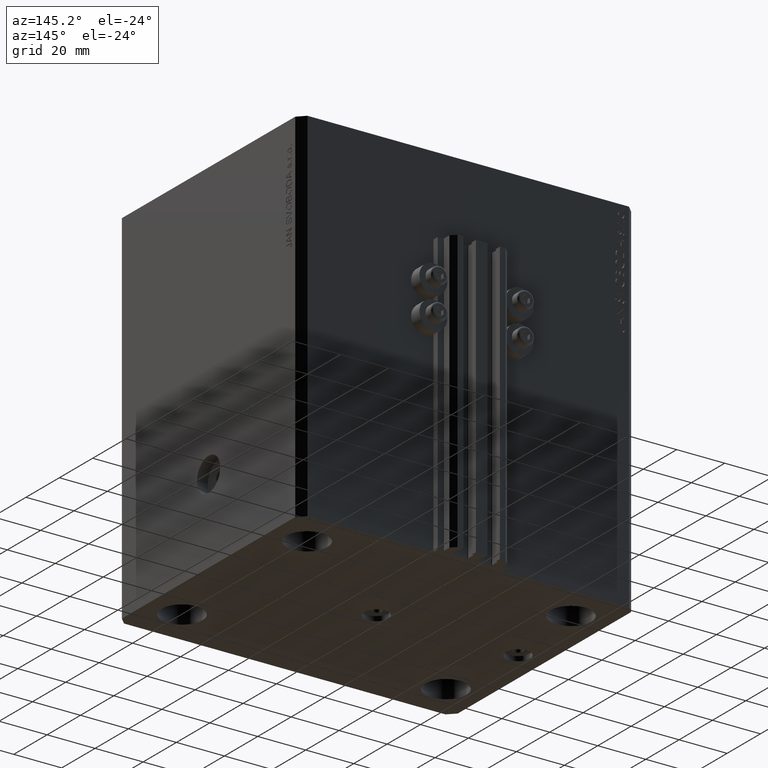
[diagram: clean part render]
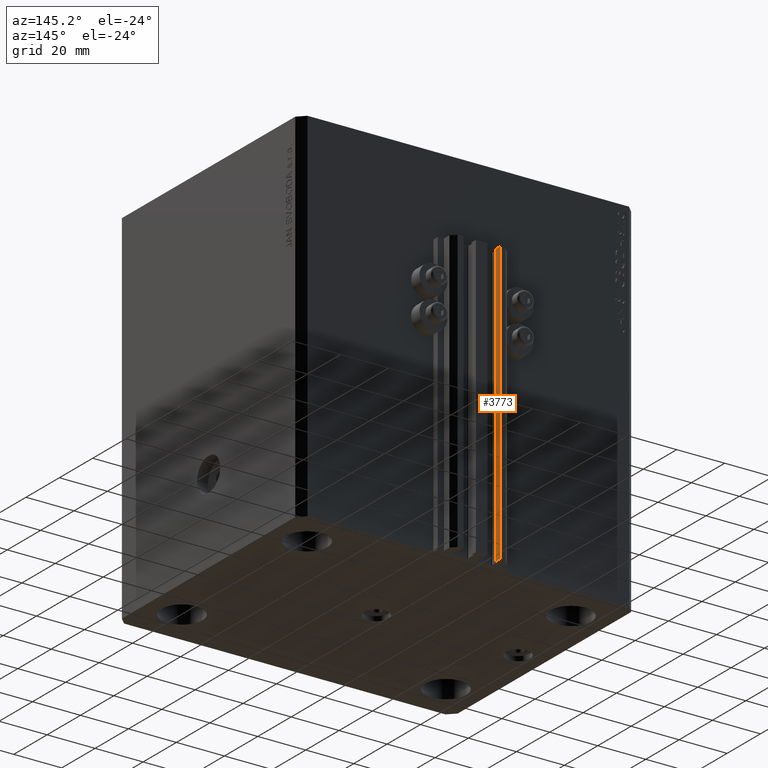
[diagram: same view with one face highlighted and labeled with its STEP entity id]
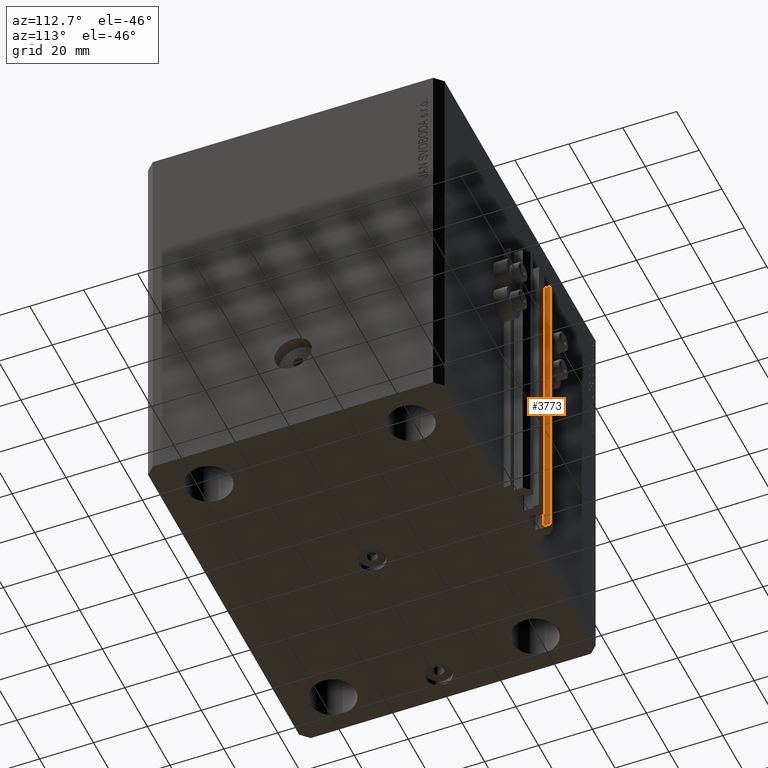
[diagram: same view with one face highlighted and labeled with its STEP entity id]
A machine part, auxiliary view. The second image highlights one B-rep face of the part: STEP entity #3773.
A second angle (auxiliary view) of the same face is appended — the face is thin or edge-on in the first view.
In plain terms, the highlighted planar face has unit normal (1, -0, 0).
Its self-contained STEP definition (entity closure, byte-faithful):
#3773 = ADVANCED_FACE ( 'NONE', ( #34742 ), #30919, .T. ) ;
#3820 = VERTEX_POINT ( 'NONE', #16788 ) ;
#4553 = VECTOR ( 'NONE', #31254, 1000.000000000000000 ) ;
#6729 = AXIS2_PLACEMENT_3D ( 'NONE', #30685, #31154, #35215 ) ;
#7490 = EDGE_CURVE ( 'NONE', #29170, #40756, #45861, .T. ) ;
#8925 = VERTEX_POINT ( 'NONE', #36442 ) ;
#9078 = ORIENTED_EDGE ( 'NONE', *, *, #7490, .T. ) ;
#10102 = EDGE_LOOP ( 'NONE', ( #37171, #11234, #23352, #9078 ) ) ;
#10128 = DIRECTION ( 'NONE',  ( 2.891205793294671522E-15, 1.000000000000000000, 0.000000000000000000 ) ) ;
#11234 = ORIENTED_EDGE ( 'NONE', *, *, #19901, .F. ) ;
#16648 = CARTESIAN_POINT ( 'NONE',  ( -7.650000000000002132, 63.00000000000000000, -150.0000000000000000 ) ) ;
#16788 = CARTESIAN_POINT ( 'NONE',  ( -7.650000000000009237, 60.59999999999999432, -150.0000000000000000 ) ) ;
#19901 = EDGE_CURVE ( 'NONE', #3820, #8925, #46335, .T. ) ;
#21605 = LINE ( 'NONE', #35279, #44193 ) ;
#22672 = CARTESIAN_POINT ( 'NONE',  ( -7.650000000000009237, 60.59999999999999432, -33.00000000000000000 ) ) ;
#23352 = ORIENTED_EDGE ( 'NONE', *, *, #44267, .T. ) ;
#25776 = LINE ( 'NONE', #22672, #28129 ) ;
#28129 = VECTOR ( 'NONE', #37510, 1000.000000000000000 ) ;
#29170 = VERTEX_POINT ( 'NONE', #29782 ) ;
#29782 = CARTESIAN_POINT ( 'NONE',  ( -7.650000000000002132, 63.00000000000000000, -150.0000000000000000 ) ) ;
#30685 = CARTESIAN_POINT ( 'NONE',  ( -7.650000000000009237, 60.59999999999999432, -150.0000000000000000 ) ) ;
#30919 = PLANE ( 'NONE',  #6729 ) ;
#31154 = DIRECTION ( 'NONE',  ( 1.000000000000000000, -2.891205793294671128E-15, 0.000000000000000000 ) ) ;
#31254 = DIRECTION ( 'NONE',  ( 0.000000000000000000, 0.000000000000000000, 1.000000000000000000 ) ) ;
#31259 = CARTESIAN_POINT ( 'NONE',  ( -7.650000000000009237, 60.59999999999999432, -150.0000000000000000 ) ) ;
#33660 = CARTESIAN_POINT ( 'NONE',  ( -7.650000000000002132, 63.00000000000000000, -33.00000000000000000 ) ) ;
#33999 = EDGE_CURVE ( 'NONE', #8925, #40756, #25776, .T. ) ;
#34742 = FACE_OUTER_BOUND ( 'NONE', #10102, .T. ) ;
#35215 = DIRECTION ( 'NONE',  ( 2.891205793294671128E-15, 1.000000000000000000, 0.000000000000000000 ) ) ;
#35279 = CARTESIAN_POINT ( 'NONE',  ( -7.650000000000009237, 60.59999999999999432, -150.0000000000000000 ) ) ;
#35319 = DIRECTION ( 'NONE',  ( 0.000000000000000000, 0.000000000000000000, 1.000000000000000000 ) ) ;
#36442 = CARTESIAN_POINT ( 'NONE',  ( -7.650000000000009237, 60.59999999999999432, -33.00000000000000000 ) ) ;
#37171 = ORIENTED_EDGE ( 'NONE', *, *, #33999, .F. ) ;
#37510 = DIRECTION ( 'NONE',  ( 2.891205793294671522E-15, 1.000000000000000000, 0.000000000000000000 ) ) ;
#37684 = VECTOR ( 'NONE', #35319, 1000.000000000000000 ) ;
#40756 = VERTEX_POINT ( 'NONE', #33660 ) ;
#44193 = VECTOR ( 'NONE', #10128, 1000.000000000000000 ) ;
#44267 = EDGE_CURVE ( 'NONE', #3820, #29170, #21605, .T. ) ;
#45861 = LINE ( 'NONE', #16648, #4553 ) ;
#46335 = LINE ( 'NONE', #31259, #37684 ) ;